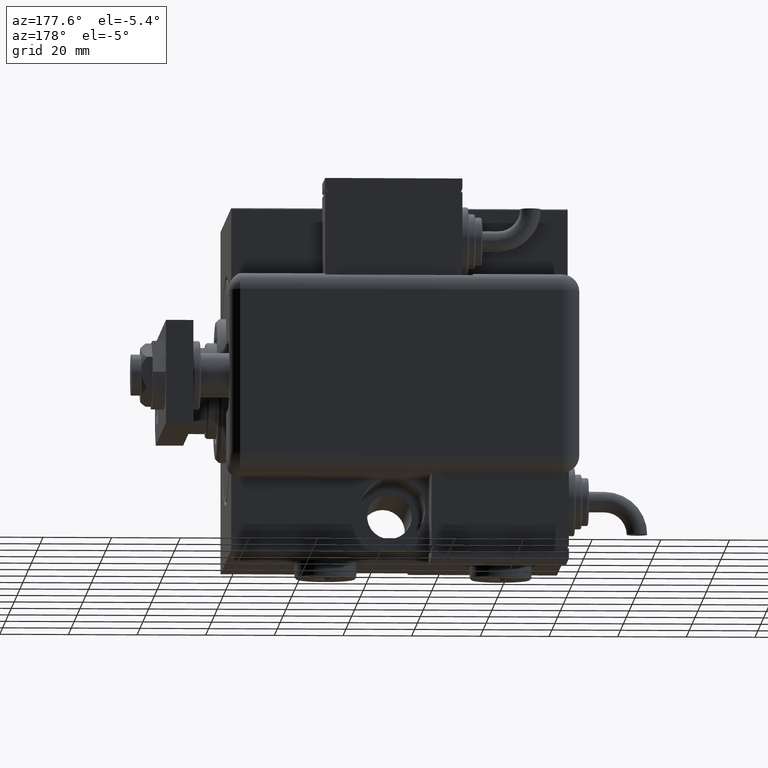
[diagram: clean part render]
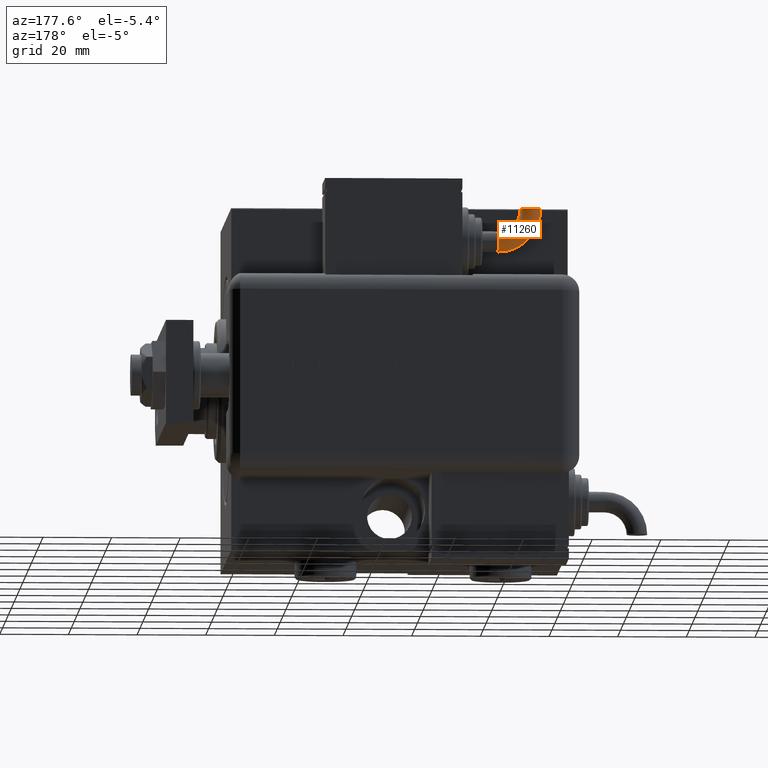
[diagram: same view with one face highlighted and labeled with its STEP entity id]
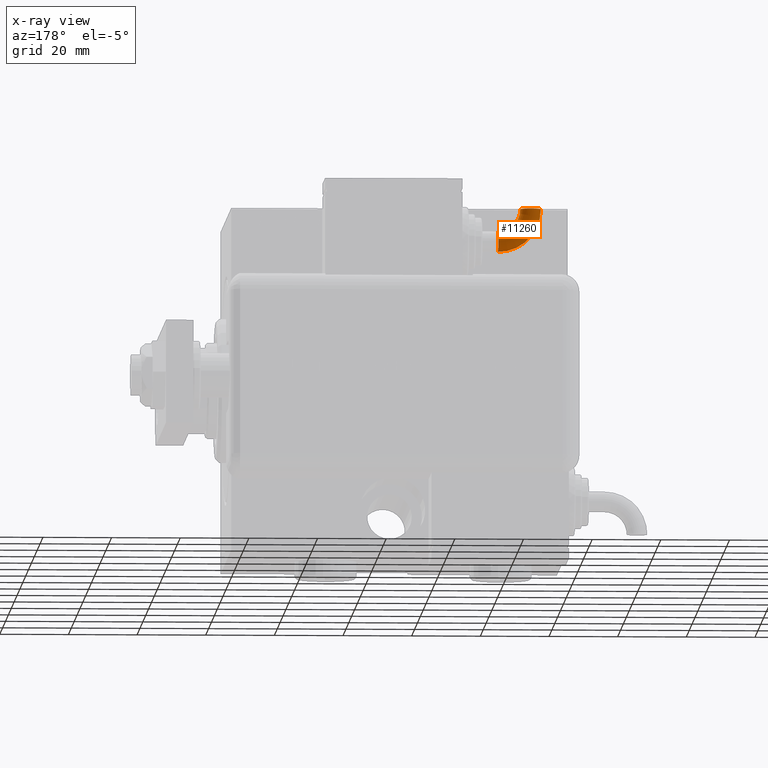
[diagram: x-ray of the same camera — body ghosted, the highlighted face saturated]
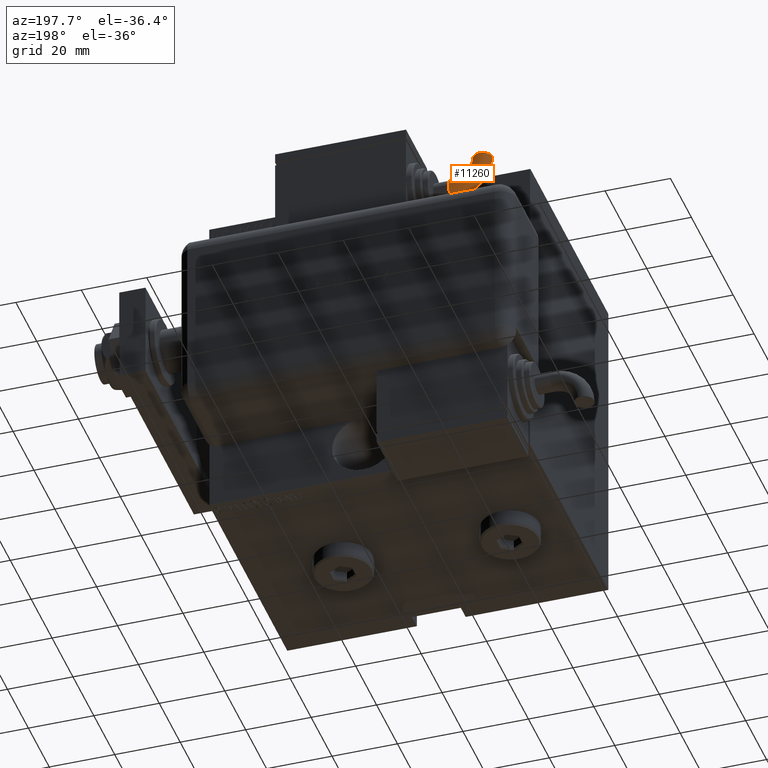
[diagram: same view with one face highlighted and labeled with its STEP entity id]
A machine part, auxiliary view. The second image highlights one B-rep face of the part: STEP entity #11260.
The next image is the same camera in x-ray: the body ghosted, the highlighted face saturated — about 0% of this face is hidden behind the body in this view.
A second angle (auxiliary view) of the same face is appended — the face is thin or edge-on in the first view.
In plain terms, the highlighted toroidal blend (fillet) surface has major radius 9.5072 mm and minor (blend) radius 3 mm.
Its self-contained STEP definition (entity closure, byte-faithful):
#2132 = CIRCLE ( 'NONE', #21334, 2.999999999999996003 ) ;
#2654 = CARTESIAN_POINT ( 'NONE',  ( -40.25922829605691078, -9.507281895111381331, 0.000000000000000000 ) ) ;
#4158 = CIRCLE ( 'NONE', #44742, 12.50721151927396058 ) ;
#4956 = ORIENTED_EDGE ( 'NONE', *, *, #58242, .T. ) ;
#5915 = DIRECTION ( 'NONE',  ( 0.000000000000000000, 0.000000000000000000, 1.000000000000000000 ) ) ;
#6864 = TOROIDAL_SURFACE ( 'NONE', #37789, 9.507211519273964129, 2.999999999999996891 ) ;
#7909 = CARTESIAN_POINT ( 'NONE',  ( -30.75201677704342274, -9.507211519273942812, 0.000000000000000000 ) ) ;
#11260 = ADVANCED_FACE ( 'NONE', ( #15295 ), #6864, .T. ) ;
#11341 = CARTESIAN_POINT ( 'NONE',  ( -30.75201677704342274, -9.507211519273942812, 0.000000000000000000 ) ) ;
#11745 = DIRECTION ( 'NONE',  ( -7.402363701065945741E-06, 0.9999999999726024713, 0.000000000000000000 ) ) ;
#12779 = CARTESIAN_POINT ( 'NONE',  ( -43.25922829597471519, -9.507304102202486007, 0.000000000000000000 ) ) ;
#14162 = CARTESIAN_POINT ( 'NONE',  ( -30.75201677704342629, 3.000000000000017319, 0.000000000000000000 ) ) ;
#15295 = FACE_OUTER_BOUND ( 'NONE', #43250, .T. ) ;
#15340 = CARTESIAN_POINT ( 'NONE',  ( -30.75201677704342274, 2.081668171172168513E-14, 0.000000000000000000 ) ) ;
#15988 = CIRCLE ( 'NONE', #31440, 2.999999999999996003 ) ;
#17586 = DIRECTION ( 'NONE',  ( 0.000000000000000000, 0.000000000000000000, 1.000000000000000000 ) ) ;
#20502 = CIRCLE ( 'NONE', #54238, 6.507211519273966793 ) ;
#21334 = AXIS2_PLACEMENT_3D ( 'NONE', #15340, #24996, #44029 ) ;
#24996 = DIRECTION ( 'NONE',  ( 1.000000000000000000, 1.025520576932673761E-15, 0.000000000000000000 ) ) ;
#25070 = ORIENTED_EDGE ( 'NONE', *, *, #36290, .F. ) ;
#28508 = EDGE_CURVE ( 'NONE', #38343, #54593, #15988, .T. ) ;
#30187 = DIRECTION ( 'NONE',  ( -0.9999999999726024713, -7.402363701169985951E-06, 0.000000000000000000 ) ) ;
#30691 = CIRCLE ( 'NONE', #51952, 2.999999999999996891 ) ;
#31440 = AXIS2_PLACEMENT_3D ( 'NONE', #32675, #59594, #51121 ) ;
#31469 = ORIENTED_EDGE ( 'NONE', *, *, #42844, .T. ) ;
#32675 = CARTESIAN_POINT ( 'NONE',  ( -30.75201677704342274, 2.081668171172168513E-14, 0.000000000000000000 ) ) ;
#35159 = DIRECTION ( 'NONE',  ( 0.000000000000000000, 0.000000000000000000, 1.000000000000000000 ) ) ;
#36290 = EDGE_CURVE ( 'NONE', #38791, #40040, #20502, .T. ) ;
#37025 = EDGE_CURVE ( 'NONE', #54593, #38791, #2132, .T. ) ;
#37789 = AXIS2_PLACEMENT_3D ( 'NONE', #11341, #5915, #52782 ) ;
#38343 = VERTEX_POINT ( 'NONE', #14162 ) ;
#38791 = VERTEX_POINT ( 'NONE', #53636 ) ;
#40040 = VERTEX_POINT ( 'NONE', #54376 ) ;
#42844 = EDGE_CURVE ( 'NONE', #38343, #52843, #4158, .T. ) ;
#43250 = EDGE_LOOP ( 'NONE', ( #45682, #31469, #4956, #25070, #53618 ) ) ;
#44029 = DIRECTION ( 'NONE',  ( -1.156482317317872908E-15, 1.000000000000000000, 0.000000000000000000 ) ) ;
#44236 = DIRECTION ( 'NONE',  ( 1.000000000000000000, 0.000000000000000000, 0.000000000000000000 ) ) ;
#44742 = AXIS2_PLACEMENT_3D ( 'NONE', #7909, #17586, #54773 ) ;
#45682 = ORIENTED_EDGE ( 'NONE', *, *, #28508, .F. ) ;
#50997 = CARTESIAN_POINT ( 'NONE',  ( -30.75201677704342274, 2.081668171172168829E-14, 2.999999999999997335 ) ) ;
#51121 = DIRECTION ( 'NONE',  ( -1.156482317317872908E-15, 1.000000000000000000, 0.000000000000000000 ) ) ;
#51952 = AXIS2_PLACEMENT_3D ( 'NONE', #2654, #11745, #30187 ) ;
#52782 = DIRECTION ( 'NONE',  ( 1.000000000000000000, 0.000000000000000000, 0.000000000000000000 ) ) ;
#52843 = VERTEX_POINT ( 'NONE', #12779 ) ;
#53614 = CARTESIAN_POINT ( 'NONE',  ( -30.75201677704342274, -9.507211519273942812, -3.673940397442055924E-16 ) ) ;
#53618 = ORIENTED_EDGE ( 'NONE', *, *, #37025, .F. ) ;
#53636 = CARTESIAN_POINT ( 'NONE',  ( -30.75201677704341918, -2.999999999999976463, -3.673940397442056910E-16 ) ) ;
#54238 = AXIS2_PLACEMENT_3D ( 'NONE', #53614, #35159, #44236 ) ;
#54376 = CARTESIAN_POINT ( 'NONE',  ( -37.25922829613910636, -9.507259688020280208, -3.673940397551225891E-16 ) ) ;
#54593 = VERTEX_POINT ( 'NONE', #50997 ) ;
#54773 = DIRECTION ( 'NONE',  ( 1.000000000000000000, 0.000000000000000000, 0.000000000000000000 ) ) ;
#58242 = EDGE_CURVE ( 'NONE', #52843, #40040, #30691, .T. ) ;
#59594 = DIRECTION ( 'NONE',  ( 1.000000000000000000, 1.025520576932673761E-15, 0.000000000000000000 ) ) ;